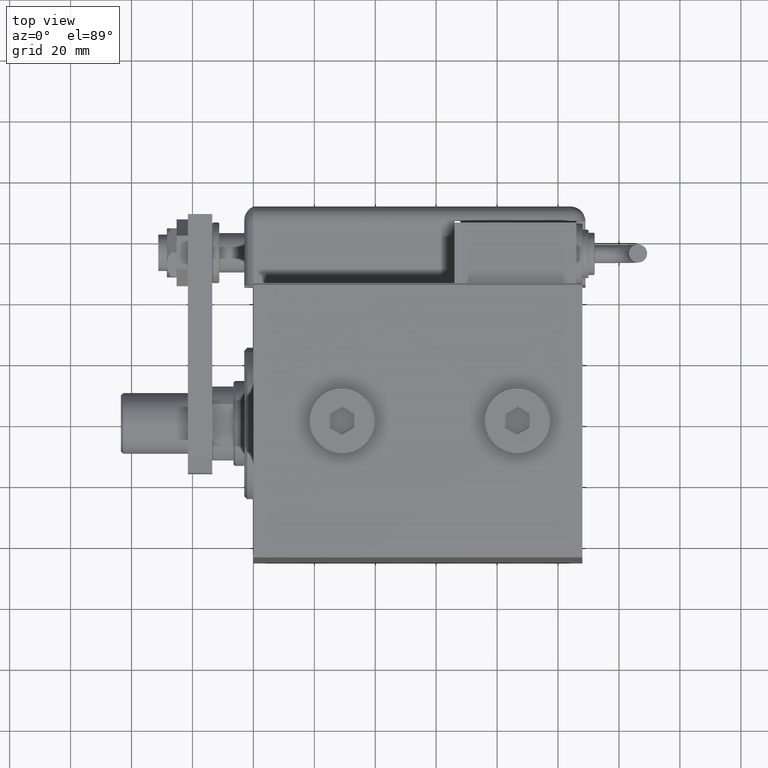
[diagram: clean part render]
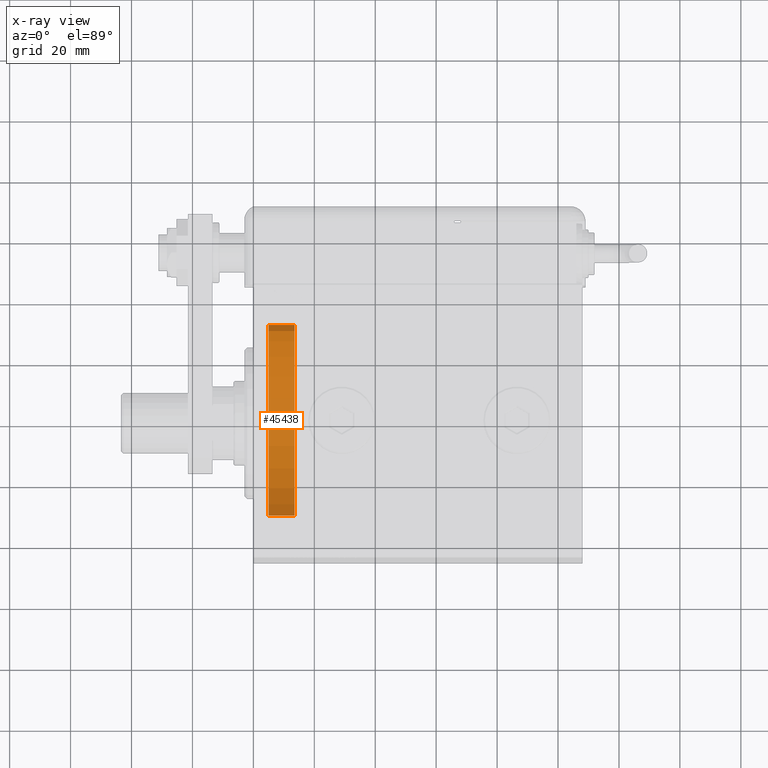
[diagram: x-ray — body ghosted, one internal face saturated and labeled with its STEP entity id]
A machine part, top view, then the same camera in x-ray: the body is ghosted and one INTERNAL B-rep face — a face not visible from any outside direction — is saturated and labeled: STEP entity #45438.
In plain terms, the highlighted cylindrical surface (partial cylindrical patch) has radius 32.5 mm, axis along (-1, 0, 0).
Its self-contained STEP definition (entity closure, byte-faithful):
#807 = CIRCLE ( 'NONE', #35575, 32.50000000000000000 ) ;
#4545 = FACE_OUTER_BOUND ( 'NONE', #27336, .T. ) ;
#4546 = DIRECTION ( 'NONE',  ( 1.000000000000000000, -0.000000000000000000, -0.000000000000000000 ) ) ;
#5191 = VERTEX_POINT ( 'NONE', #22221 ) ;
#6651 = DIRECTION ( 'NONE',  ( 0.000000000000000000, 0.000000000000000000, 1.000000000000000000 ) ) ;
#9267 = EDGE_CURVE ( 'NONE', #37297, #49682, #34405, .T. ) ;
#10863 = ORIENTED_EDGE ( 'NONE', *, *, #48718, .F. ) ;
#11620 = CARTESIAN_POINT ( 'NONE',  ( -13.50000000000000178, 0.000000000000000000, 0.000000000000000000 ) ) ;
#12746 = CARTESIAN_POINT ( 'NONE',  ( -5.000000000000000000, 0.000000000000000000, 0.000000000000000000 ) ) ;
#15446 = CARTESIAN_POINT ( 'NONE',  ( -13.50000000000000178, 3.980102097228898626E-15, 32.50000000000000000 ) ) ;
#15652 = CIRCLE ( 'NONE', #50431, 32.50000000000000000 ) ;
#19961 = EDGE_CURVE ( 'NONE', #5191, #53892, #40915, .T. ) ;
#20342 = ORIENTED_EDGE ( 'NONE', *, *, #46086, .T. ) ;
#21028 = DIRECTION ( 'NONE',  ( 0.000000000000000000, 0.000000000000000000, -1.000000000000000000 ) ) ;
#21109 = ORIENTED_EDGE ( 'NONE', *, *, #19961, .F. ) ;
#21326 = CYLINDRICAL_SURFACE ( 'NONE', #48443, 32.50000000000000000 ) ;
#22221 = CARTESIAN_POINT ( 'NONE',  ( -13.50000000000000178, 0.000000000000000000, -32.50000000000000000 ) ) ;
#22789 = CARTESIAN_POINT ( 'NONE',  ( -5.000000000000000000, 3.980102097228898626E-15, 32.50000000000000000 ) ) ;
#25704 = VECTOR ( 'NONE', #50557, 1000.000000000000000 ) ;
#25980 = CARTESIAN_POINT ( 'NONE',  ( -13.50000000000000178, 0.000000000000000000, -32.50000000000000000 ) ) ;
#27336 = EDGE_LOOP ( 'NONE', ( #10863, #47622, #20342, #21109 ) ) ;
#28282 = DIRECTION ( 'NONE',  ( 0.000000000000000000, 0.000000000000000000, 1.000000000000000000 ) ) ;
#28678 = CARTESIAN_POINT ( 'NONE',  ( -13.50000000000000178, 3.980102097228898626E-15, 32.50000000000000000 ) ) ;
#33085 = CARTESIAN_POINT ( 'NONE',  ( -5.000000000000000000, 0.000000000000000000, -32.50000000000000000 ) ) ;
#34405 = LINE ( 'NONE', #15446, #52477 ) ;
#35022 = CARTESIAN_POINT ( 'NONE',  ( -13.50000000000000178, 0.000000000000000000, 0.000000000000000000 ) ) ;
#35575 = AXIS2_PLACEMENT_3D ( 'NONE', #11620, #39952, #6651 ) ;
#37297 = VERTEX_POINT ( 'NONE', #28678 ) ;
#37918 = DIRECTION ( 'NONE',  ( -1.000000000000000000, 0.000000000000000000, 0.000000000000000000 ) ) ;
#39078 = DIRECTION ( 'NONE',  ( 1.000000000000000000, -0.000000000000000000, -0.000000000000000000 ) ) ;
#39952 = DIRECTION ( 'NONE',  ( -1.000000000000000000, 0.000000000000000000, 0.000000000000000000 ) ) ;
#40915 = LINE ( 'NONE', #25980, #25704 ) ;
#45438 = ADVANCED_FACE ( 'NONE', ( #4545 ), #21326, .T. ) ;
#46086 = EDGE_CURVE ( 'NONE', #49682, #53892, #15652, .T. ) ;
#47622 = ORIENTED_EDGE ( 'NONE', *, *, #9267, .T. ) ;
#48443 = AXIS2_PLACEMENT_3D ( 'NONE', #35022, #39078, #21028 ) ;
#48718 = EDGE_CURVE ( 'NONE', #37297, #5191, #807, .T. ) ;
#49682 = VERTEX_POINT ( 'NONE', #22789 ) ;
#50431 = AXIS2_PLACEMENT_3D ( 'NONE', #12746, #37918, #28282 ) ;
#50557 = DIRECTION ( 'NONE',  ( 1.000000000000000000, -0.000000000000000000, -0.000000000000000000 ) ) ;
#52477 = VECTOR ( 'NONE', #4546, 1000.000000000000000 ) ;
#53892 = VERTEX_POINT ( 'NONE', #33085 ) ;